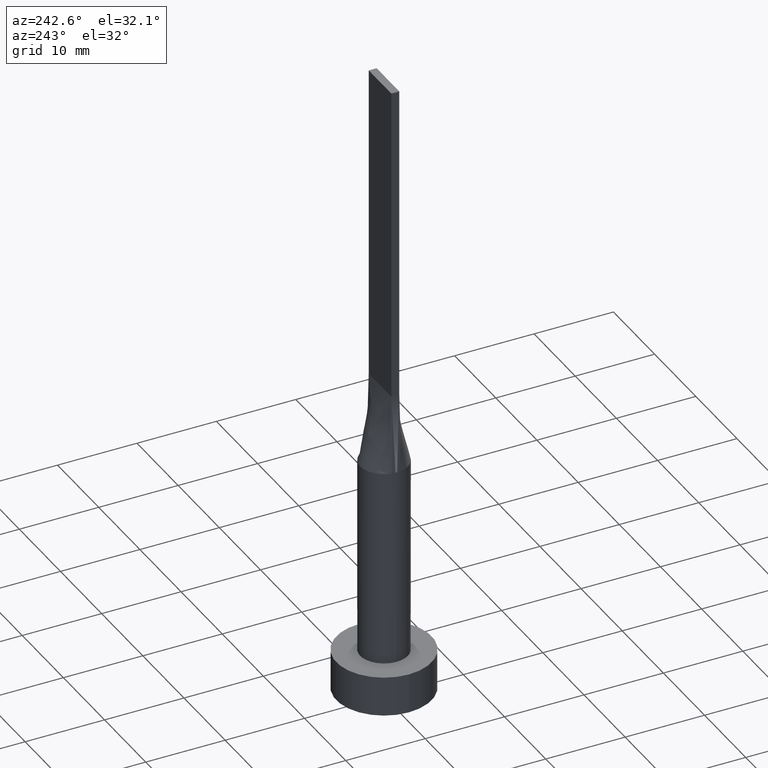
[diagram: clean part render]
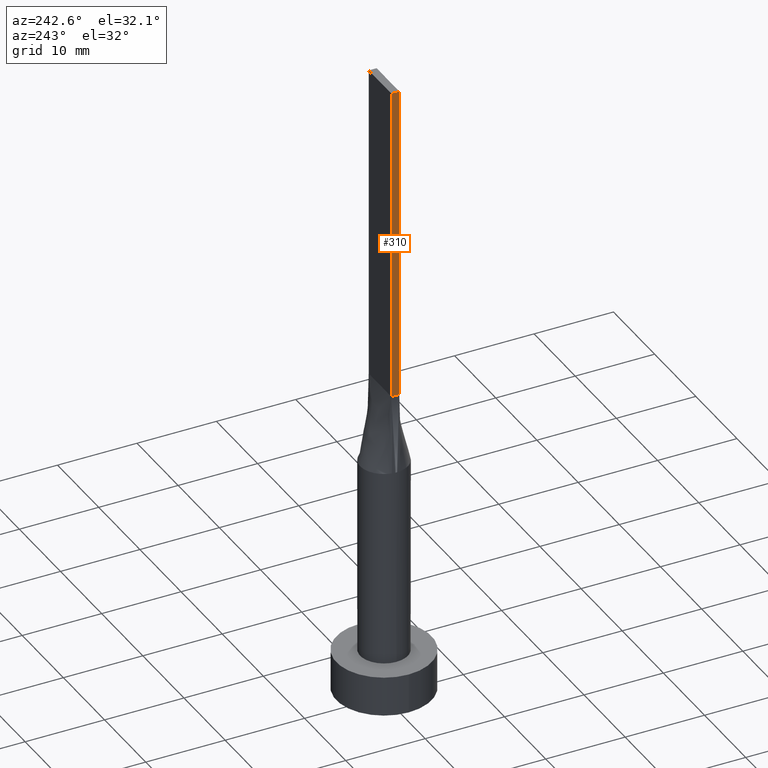
[diagram: same view with one face highlighted and labeled with its STEP entity id]
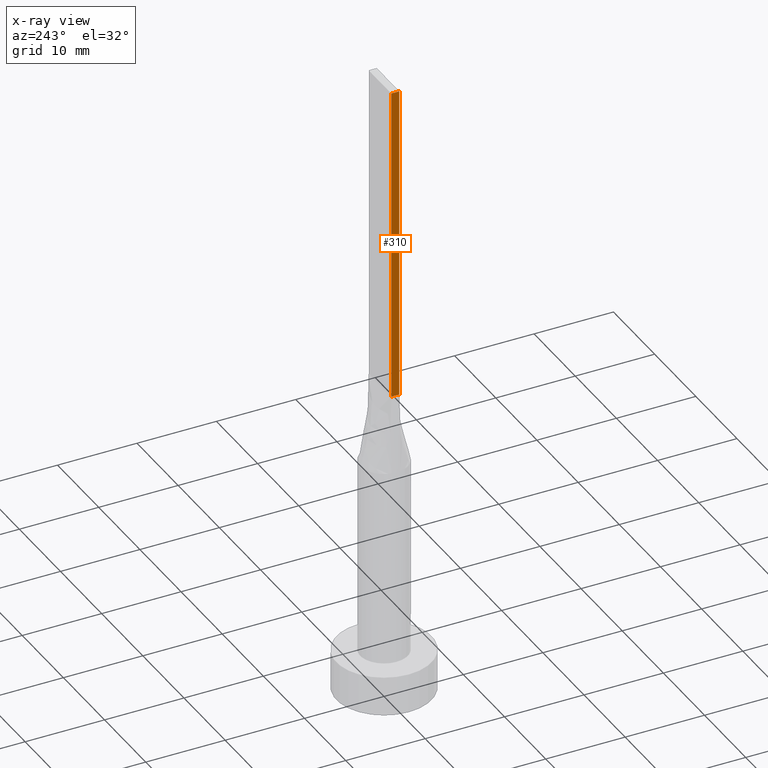
[diagram: x-ray of the same camera — body ghosted, the highlighted face saturated]
A machine part, auxiliary view. The second image highlights one B-rep face of the part: STEP entity #310.
The next image is the same camera in x-ray: the body ghosted, the highlighted face saturated — about 0% of this face is hidden behind the body in this view.
In plain terms, the highlighted planar face has unit normal (1, 0, -0).
Its self-contained STEP definition (entity closure, byte-faithful):
#4 = CARTESIAN_POINT ( 'NONE',  ( -2.750000000000000000, 0.5000000000000002220, 40.00000000000000000 ) ) ;
#16 = EDGE_LOOP ( 'NONE', ( #291, #200, #516, #106 ) ) ;
#32 = EDGE_CURVE ( 'NONE', #335, #519, #494, .T. ) ;
#41 = EDGE_CURVE ( 'NONE', #252, #335, #122, .T. ) ;
#45 = CARTESIAN_POINT ( 'NONE',  ( -2.750000000000000000, -0.4999999999999994449, 80.00000000000000000 ) ) ;
#70 = VERTEX_POINT ( 'NONE', #499 ) ;
#73 = DIRECTION ( 'NONE',  ( -0.000000000000000000, 0.000000000000000000, -1.000000000000000000 ) ) ;
#90 = LINE ( 'NONE', #4, #360 ) ;
#106 = ORIENTED_EDGE ( 'NONE', *, *, #159, .T. ) ;
#122 = LINE ( 'NONE', #304, #230 ) ;
#130 = VECTOR ( 'NONE', #571, 1000.000000000000000 ) ;
#135 = EDGE_CURVE ( 'NONE', #70, #519, #90, .T. ) ;
#159 = EDGE_CURVE ( 'NONE', #252, #70, #319, .T. ) ;
#196 = CARTESIAN_POINT ( 'NONE',  ( -2.750000000000000000, -0.4999999999999994449, 80.00000000000000000 ) ) ;
#200 = ORIENTED_EDGE ( 'NONE', *, *, #32, .F. ) ;
#230 = VECTOR ( 'NONE', #483, 1000.000000000000000 ) ;
#252 = VERTEX_POINT ( 'NONE', #287 ) ;
#287 = CARTESIAN_POINT ( 'NONE',  ( -2.750000000000000000, 0.5000000000000002220, 80.00000000000000000 ) ) ;
#291 = ORIENTED_EDGE ( 'NONE', *, *, #135, .T. ) ;
#299 = FACE_OUTER_BOUND ( 'NONE', #16, .T. ) ;
#304 = CARTESIAN_POINT ( 'NONE',  ( -2.750000000000000000, 0.5000000000000002220, 80.00000000000000000 ) ) ;
#310 = ADVANCED_FACE ( 'NONE', ( #299 ), #556, .F. ) ;
#313 = VECTOR ( 'NONE', #369, 1000.000000000000000 ) ;
#319 = LINE ( 'NONE', #497, #313 ) ;
#335 = VERTEX_POINT ( 'NONE', #196 ) ;
#360 = VECTOR ( 'NONE', #506, 1000.000000000000000 ) ;
#369 = DIRECTION ( 'NONE',  ( -0.000000000000000000, -0.000000000000000000, -1.000000000000000000 ) ) ;
#392 = CARTESIAN_POINT ( 'NONE',  ( -2.750000000000000000, 0.5000000000000002220, 80.00000000000000000 ) ) ;
#483 = DIRECTION ( 'NONE',  ( 0.000000000000000000, -1.000000000000000000, 0.000000000000000000 ) ) ;
#494 = LINE ( 'NONE', #45, #130 ) ;
#496 = CARTESIAN_POINT ( 'NONE',  ( -2.750000000000000000, -0.4999999999999994449, 40.00000000000000000 ) ) ;
#497 = CARTESIAN_POINT ( 'NONE',  ( -2.750000000000000000, 0.5000000000000002220, 80.00000000000000000 ) ) ;
#499 = CARTESIAN_POINT ( 'NONE',  ( -2.750000000000000000, 0.5000000000000002220, 40.00000000000000000 ) ) ;
#506 = DIRECTION ( 'NONE',  ( 0.000000000000000000, -1.000000000000000000, 0.000000000000000000 ) ) ;
#516 = ORIENTED_EDGE ( 'NONE', *, *, #41, .F. ) ;
#519 = VERTEX_POINT ( 'NONE', #496 ) ;
#540 = AXIS2_PLACEMENT_3D ( 'NONE', #392, #566, #73 ) ;
#556 = PLANE ( 'NONE',  #540 ) ;
#566 = DIRECTION ( 'NONE',  ( 1.000000000000000000, 0.000000000000000000, -0.000000000000000000 ) ) ;
#571 = DIRECTION ( 'NONE',  ( -0.000000000000000000, -0.000000000000000000, -1.000000000000000000 ) ) ;